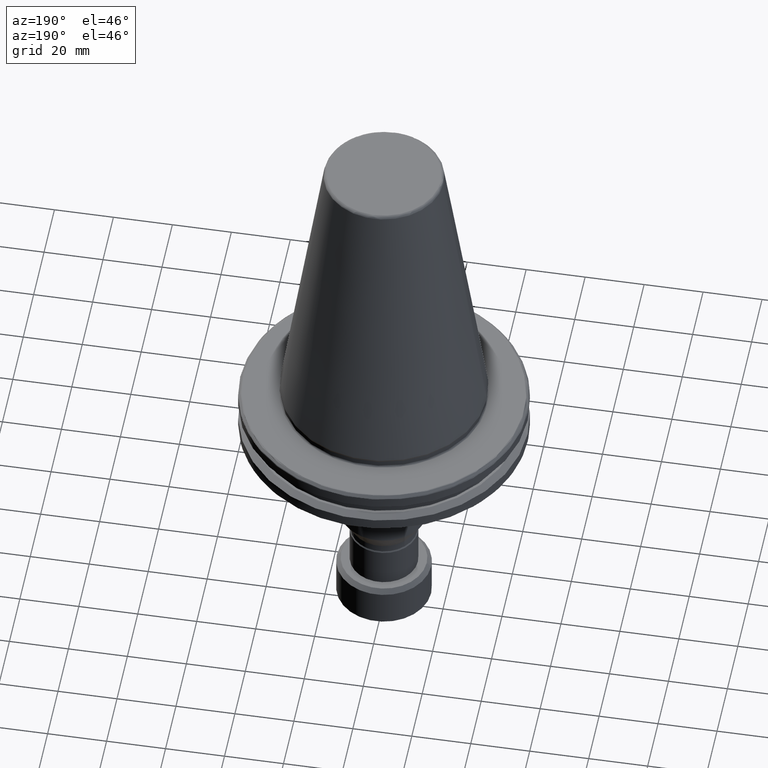
[diagram: clean part render]
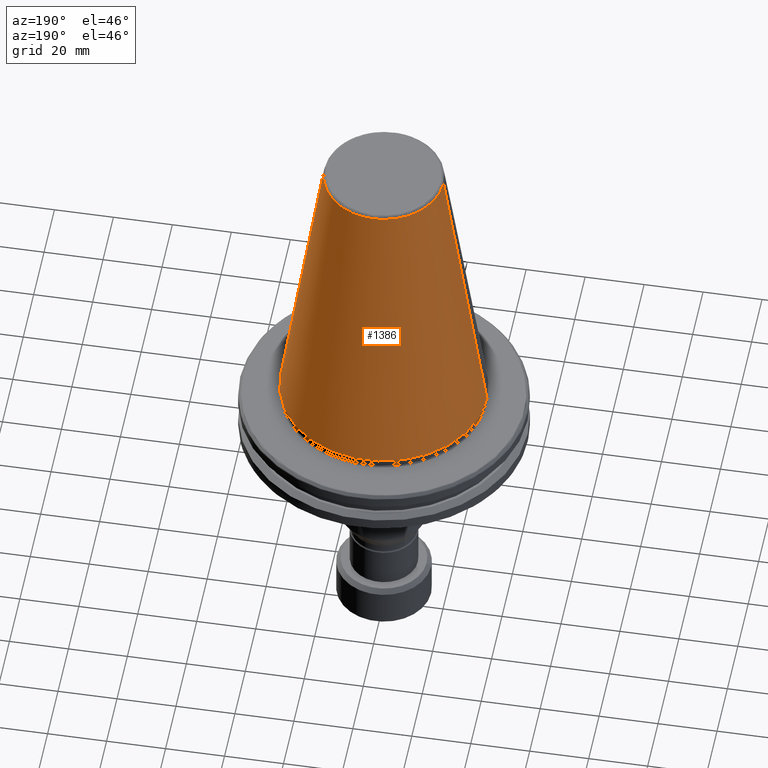
[diagram: same view with one face highlighted and labeled with its STEP entity id]
A machine part, auxiliary view. The second image highlights one B-rep face of the part: STEP entity #1386.
In plain terms, the highlighted conical surface has half-angle 8.297 deg.
Its self-contained STEP definition (entity closure, byte-faithful):
#154 = ORIENTED_EDGE ( 'NONE', *, *, #2427, .T. ) ;
#174 = EDGE_CURVE ( 'NONE', #2337, #798, #2859, .T. ) ;
#189 = DIRECTION ( 'NONE',  ( 0.0000000000000000000, 0.0000000000000000000, -1.000000000000000000 ) ) ;
#361 = ORIENTED_EDGE ( 'NONE', *, *, #2797, .F. ) ;
#363 = CARTESIAN_POINT ( 'NONE',  ( -20.21110778703756600, 0.0000000000000000000, 100.8943082272673000 ) ) ;
#421 = DIRECTION ( 'NONE',  ( -1.000000000000000000, 0.0000000000000000000, 0.0000000000000000000 ) ) ;
#541 = CIRCLE ( 'NONE', #1122, 20.21110778703756600 ) ;
#576 = CARTESIAN_POINT ( 'NONE',  ( -34.92500000000000400, 4.277078946022131700E-015, 0.0000000000000000000 ) ) ;
#577 = CARTESIAN_POINT ( 'NONE',  ( 34.92499999999999700, 4.277078946022130900E-015, -1.387778780781445700E-014 ) ) ;
#798 = VERTEX_POINT ( 'NONE', #576 ) ;
#848 = CARTESIAN_POINT ( 'NONE',  ( 20.21110778703756900, 3.376112895941950600E-015, 100.8943082272673000 ) ) ;
#1044 = VERTEX_POINT ( 'NONE', #848 ) ;
#1108 = CARTESIAN_POINT ( 'NONE',  ( 0.0000000000000000000, 0.0000000000000000000, 100.8943082272673000 ) ) ;
#1122 = AXIS2_PLACEMENT_3D ( 'NONE', #1108, #2952, #1368 ) ;
#1173 = EDGE_LOOP ( 'NONE', ( #154, #2759, #1963, #361 ) ) ;
#1368 = DIRECTION ( 'NONE',  ( -1.000000000000000000, 0.0000000000000000000, 0.0000000000000000000 ) ) ;
#1386 = ADVANCED_FACE ( 'NONE', ( #3067 ), #2995, .T. ) ;
#1410 = LINE ( 'NONE', #577, #2748 ) ;
#1539 = CARTESIAN_POINT ( 'NONE',  ( -34.92499999999999700, 0.0000000000000000000, -1.387778780781445700E-014 ) ) ;
#1609 = AXIS2_PLACEMENT_3D ( 'NONE', #2058, #189, #421 ) ;
#1915 = DIRECTION ( 'NONE',  ( -1.000000000000000000, 0.0000000000000000000, 0.0000000000000000000 ) ) ;
#1963 = ORIENTED_EDGE ( 'NONE', *, *, #174, .T. ) ;
#2058 = CARTESIAN_POINT ( 'NONE',  ( 0.0000000000000000000, 0.0000000000000000000, -1.387778780781445700E-014 ) ) ;
#2241 = AXIS2_PLACEMENT_3D ( 'NONE', #2435, #2944, #1915 ) ;
#2337 = VERTEX_POINT ( 'NONE', #3386 ) ;
#2427 = EDGE_CURVE ( 'NONE', #3334, #1044, #541, .T. ) ;
#2435 = CARTESIAN_POINT ( 'NONE',  ( 0.0000000000000000000, 0.0000000000000000000, 0.0000000000000000000 ) ) ;
#2442 = DIRECTION ( 'NONE',  ( 0.1443082272673070200, 1.767266086135363300E-017, -0.9895327864921743500 ) ) ;
#2611 = VECTOR ( 'NONE', #3381, 1000.000000000000000 ) ;
#2748 = VECTOR ( 'NONE', #2442, 1000.000000000000000 ) ;
#2759 = ORIENTED_EDGE ( 'NONE', *, *, #3211, .T. ) ;
#2797 = EDGE_CURVE ( 'NONE', #3334, #798, #3309, .T. ) ;
#2859 = CIRCLE ( 'NONE', #2241, 34.92499999999999700 ) ;
#2944 = DIRECTION ( 'NONE',  ( -0.0000000000000000000, -0.0000000000000000000, 1.000000000000000000 ) ) ;
#2952 = DIRECTION ( 'NONE',  ( 0.0000000000000000000, 0.0000000000000000000, -1.000000000000000000 ) ) ;
#2995 = CONICAL_SURFACE ( 'NONE', #1609, 34.92499999999999700, 0.1448138465474190200 ) ;
#3067 = FACE_OUTER_BOUND ( 'NONE', #1173, .T. ) ;
#3211 = EDGE_CURVE ( 'NONE', #1044, #2337, #1410, .T. ) ;
#3309 = LINE ( 'NONE', #1539, #2611 ) ;
#3334 = VERTEX_POINT ( 'NONE', #363 ) ;
#3381 = DIRECTION ( 'NONE',  ( -0.1443082272673070200, 0.0000000000000000000, -0.9895327864921743500 ) ) ;
#3386 = CARTESIAN_POINT ( 'NONE',  ( 34.92500000000000400, 0.0000000000000000000, 0.0000000000000000000 ) ) ;